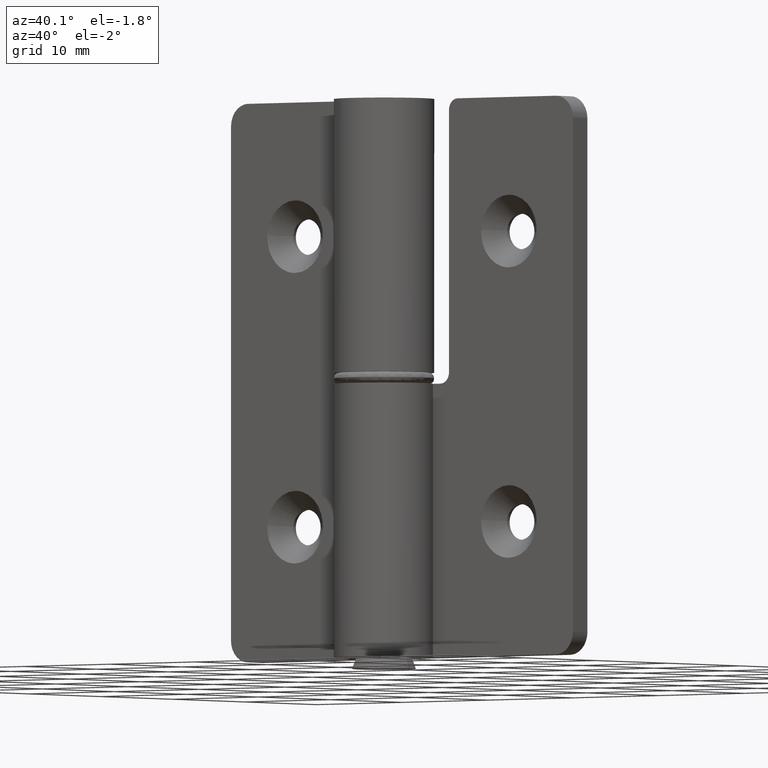
[diagram: clean part render]
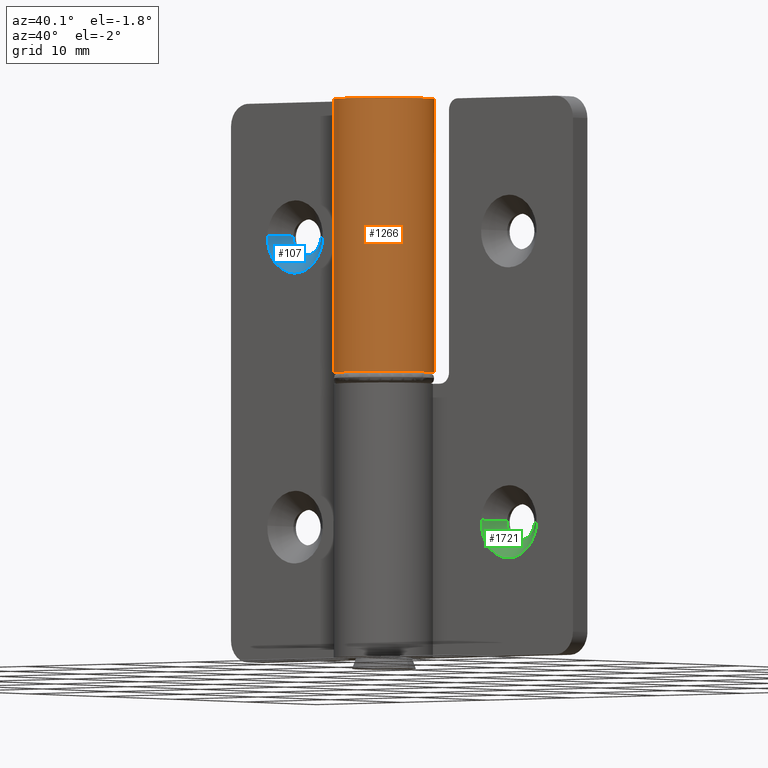
[diagram: same view with three faces highlighted in distinct colors, each labeled with its STEP entity id]
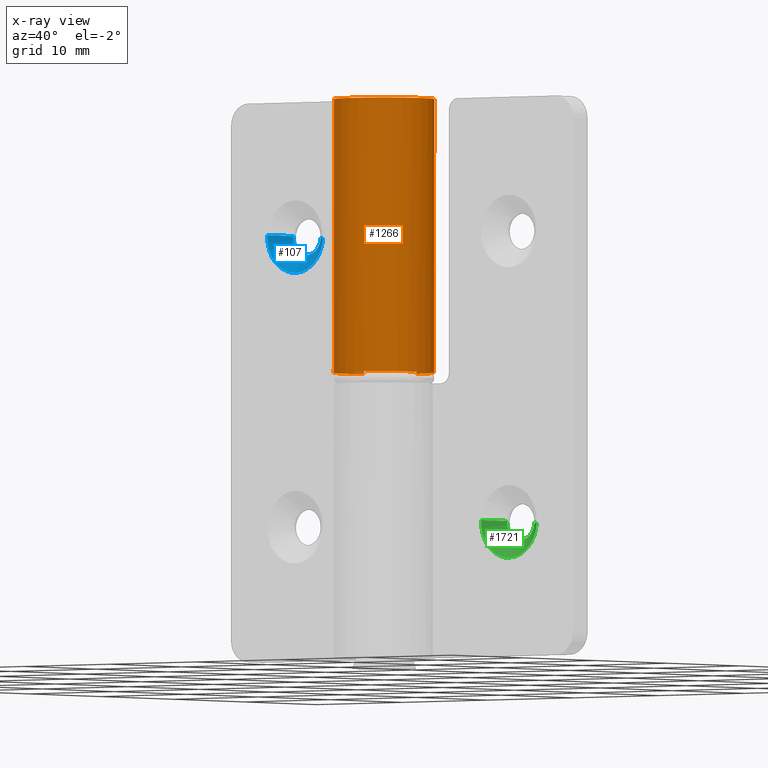
[diagram: x-ray of the same camera — body ghosted, the three highlighted faces saturated]
A machine part, auxiliary view with three faces highlighted in distinct colors.
The next image is the same camera in x-ray (body ghosted, the three faces saturated) — at least one of them is partly hidden behind the body in this view.
Their STEP definitions:

[orange] entity #1266 — the highlighted face is a freeform B-spline surface patch.
#914=CARTESIAN_POINT('',(9.090227E-012,4.500000000000000,25.500000000000000));
#915=VERTEX_POINT('',#914);
#921=CARTESIAN_POINT('',(-4.031128874146639,1.999999999986885,25.500000000000000));
#922=VERTEX_POINT('',#921);
#923=CARTESIAN_POINT('',(-4.031128874146639,1.999999999986885,25.500000000000000));
#924=CARTESIAN_POINT('',(-4.138910620356154,1.782798107865963,25.499999999999950));
#925=CARTESIAN_POINT('',(-4.307956591701969,1.359147254963135,25.500000000000139));
#926=CARTESIAN_POINT('',(-4.466060672405581,0.678384569913920,25.499999999999989));
#927=CARTESIAN_POINT('',(-4.519610460170551,-0.018988323909117,25.499999999999901));
#928=CARTESIAN_POINT('',(-4.465358347118203,-0.655282907257226,25.500000000000082));
#929=CARTESIAN_POINT('',(-4.328533426013395,-1.277753303401902,25.500000000000028));
#930=CARTESIAN_POINT('',(-4.105764026570808,-1.892439581663196,25.499999999999620));
#931=CARTESIAN_POINT('',(-3.753984773515254,-2.514825776695659,25.500000000001130));
#932=CARTESIAN_POINT('',(-3.347763742886635,-3.026463840479621,25.499999999998039));
#933=CARTESIAN_POINT('',(-2.911104865160503,-3.448547346120465,25.500000000001180));
#934=CARTESIAN_POINT('',(-2.398183750681900,-3.828133323235722,25.499999999998732));
#935=CARTESIAN_POINT('',(-1.806491343440998,-4.140338407986412,25.500000000001709));
#936=CARTESIAN_POINT('',(-1.045754788903435,-4.404368134555530,25.499999999997431));
#937=CARTESIAN_POINT('',(-0.245838113346352,-4.522836812513599,25.500000000000700));
#938=CARTESIAN_POINT('',(0.680527302417971,-4.476536234808856,25.500000000000082));
#939=CARTESIAN_POINT('',(1.494790815490179,-4.275608092340961,25.499999999999911));
#940=CARTESIAN_POINT('',(2.252082008411338,-3.920033853887739,25.500000000000000));
#941=CARTESIAN_POINT('',(2.814580962641016,-3.530516321897107,25.500000000000011));
#942=CARTESIAN_POINT('',(3.293561321972439,-3.086892765731282,25.500000000000011));
#943=CARTESIAN_POINT('',(3.737167269956867,-2.546510529960794,25.499999999999989));
#944=CARTESIAN_POINT('',(4.119983564248288,-1.870958289325793,25.500000000000060));
#945=CARTESIAN_POINT('',(4.389021113485643,-1.094859512238254,25.499999999999709));
#946=CARTESIAN_POINT('',(4.522200099860414,-0.253117987993495,25.500000000000949));
#947=CARTESIAN_POINT('',(4.487332059203711,0.614882918885437,25.500000000001119));
#948=CARTESIAN_POINT('',(4.276405911534507,1.487612542338088,25.500000000000028));
#949=CARTESIAN_POINT('',(3.927822952747235,2.249439821118553,25.499999999999890));
#950=CARTESIAN_POINT('',(3.470780646516362,2.895012160629490,25.500000000000028));
#951=CARTESIAN_POINT('',(3.001562533080932,3.371509354503664,25.500000000000071));
#952=CARTESIAN_POINT('',(2.448425272797965,3.797937982881020,25.499999999999581));
#953=CARTESIAN_POINT('',(1.833850378801791,4.133767240521741,25.500000000000188));
#954=CARTESIAN_POINT('',(0.985029688451625,4.422960157832891,25.500000000001751));
#955=CARTESIAN_POINT('',(0.378890565767316,4.500107168212135,25.499999999997112));
#956=CARTESIAN_POINT('',(9.090227E-012,4.500000000000000,25.500000000000000));
#957=B_SPLINE_CURVE_WITH_KNOTS('',3,(#923,#924,#925,#926,#927,#928,#929,#930,#931,#932,#933,#934,#935,#936,#937,#938,#939,#940,#941,#942,#943,#944,#945,#946,#947,#948,#949,#950,#951,#952,#953,#954,#955,#956),.UNSPECIFIED.,.F.,.U.,(4,1,1,1,1,1,1,1,1,1,1,1,1,1,1,1,1,1,1,1,1,1,1,1,1,1,1,1,1,1,1,4),(0.000000185197194,0.727421659227911,1.363946713318665,2.091413374560119,2.818861875617127,3.273522803122738,4.000968073018193,4.773901528733269,5.410399312036933,5.955955916896699,6.592491914206782,7.319930872682400,7.956455562245040,9.002173008620806,9.729633166254009,10.729884335361101,11.502802887088510,12.230218952372271,12.775808807470550,13.457787125797671,14.321633895144560,15.094557706912139,15.912946623686960,16.867709871461610,17.686074600304451,18.595394119166890,19.368296809987019,20.050290427055380,20.595880241202689,21.459727010893310,22.141705328241329,23.278342379552271),.UNSPECIFIED.);
#958=EDGE_CURVE('',#922,#915,#957,.T.);
#1057=CARTESIAN_POINT('',(-4.031128874146615,1.999999999986860,50.0));
#1058=VERTEX_POINT('',#1057);
#1064=CARTESIAN_POINT('',(9.114612E-012,4.500000000000000,50.0));
#1065=VERTEX_POINT('',#1064);
#1066=CARTESIAN_POINT('',(9.114612E-012,4.500000000000000,50.0));
#1067=CARTESIAN_POINT('',(0.272793510468058,4.500026416084811,49.999999999999943));
#1068=CARTESIAN_POINT('',(0.803211475465134,4.451624590594709,50.000000000000057));
#1069=CARTESIAN_POINT('',(1.507320056702505,4.258460334540823,49.999999999999822));
#1070=CARTESIAN_POINT('',(2.256461412436385,3.924619248210873,50.000000000000547));
#1071=CARTESIAN_POINT('',(2.921424171567884,3.463633875064650,49.999999999999559));
#1072=CARTESIAN_POINT('',(3.478010913680070,2.880840617943311,50.000000000000412));
#1073=CARTESIAN_POINT('',(3.837794046686162,2.372597761248092,49.999999999999851));
#1074=CARTESIAN_POINT('',(4.187837264961154,1.716112380432929,49.999999999999083));
#1075=CARTESIAN_POINT('',(4.442251529426352,0.915935706474383,49.999999999999723));
#1076=CARTESIAN_POINT('',(4.527660336802565,-0.024150407826365,50.000000000000483));
#1077=CARTESIAN_POINT('',(4.433752968486250,-0.948127517464367,50.000000000000078));
#1078=CARTESIAN_POINT('',(4.170281395785108,-1.760906916162176,49.999999999999950));
#1079=CARTESIAN_POINT('',(3.725597233816329,-2.574072974227107,50.000000000000149));
#1080=CARTESIAN_POINT('',(3.170139409360018,-3.243927161050396,49.999999999999943));
#1081=CARTESIAN_POINT('',(2.485129501473573,-3.776757996166634,49.999999999999993));
#1082=CARTESIAN_POINT('',(1.803122290434791,-4.144501094150799,50.000000000000043));
#1083=CARTESIAN_POINT('',(1.141532582488197,-4.373214375542873,49.999999999999957));
#1084=CARTESIAN_POINT('',(0.452864348966808,-4.492263240859656,50.000000000000043));
#1085=CARTESIAN_POINT('',(-0.230532716290286,-4.512607979627694,50.000000000000007));
#1086=CARTESIAN_POINT('',(-0.849176702133131,-4.433698847637270,49.999999999999957));
#1087=CARTESIAN_POINT('',(-1.493856261142749,-4.259950861217748,50.000000000000043));
#1088=CARTESIAN_POINT('',(-2.040335899169011,-4.029130921288351,50.0));
#1089=CARTESIAN_POINT('',(-2.650126141110520,-3.658484926538105,50.000000000000050));
#1090=CARTESIAN_POINT('',(-3.186563271831437,-3.208760367284297,49.999999999999957));
#1091=CARTESIAN_POINT('',(-3.755637346993983,-2.535053907513366,50.000000000000071));
#1092=CARTESIAN_POINT('',(-4.135728853807953,-1.838110080324346,49.999999999999957));
#1093=CARTESIAN_POINT('',(-4.396306304557934,-1.044718533186136,50.000000000000007));
#1094=CARTESIAN_POINT('',(-4.520675522963336,-0.278264586863021,50.000000000000227));
#1095=CARTESIAN_POINT('',(-4.491971475178015,0.513321824481070,49.999999999999460));
#1096=CARTESIAN_POINT('',(-4.332786464435726,1.286879942973901,50.000000000000817));
#1097=CARTESIAN_POINT('',(-4.159133022094229,1.742075457494965,50.000000000000732));
#1098=CARTESIAN_POINT('',(-4.031128874146615,1.999999999986860,50.0));
#1099=B_SPLINE_CURVE_WITH_KNOTS('',3,(#1066,#1067,#1068,#1069,#1070,#1071,#1072,#1073,#1074,#1075,#1076,#1077,#1078,#1079,#1080,#1081,#1082,#1083,#1084,#1085,#1086,#1087,#1088,#1089,#1090,#1091,#1092,#1093,#1094,#1095,#1096,#1097,#1098),.UNSPECIFIED.,.F.,.U.,(4,1,1,1,1,1,1,1,1,1,1,1,1,1,1,1,1,1,1,1,1,1,1,1,1,1,1,1,1,1,4),(0.000000185198601,0.818379339119371,1.591284352427532,2.182336765592432,3.273522803123452,4.000968073018775,4.592038171186250,5.137628766775389,6.228767062137749,7.092618699236880,7.956455562245079,9.002173008620789,9.638689983507520,10.729884335360939,11.593726297629241,12.230218952371910,13.048584592349700,13.685108474111150,14.321633895144320,15.094557706912020,15.549217326253070,16.322120016545089,16.867709871461859,17.686074600304771,18.413528587056849,19.504693785488431,20.050290427055621,20.914143018290069,21.823454311568049,22.414521850843599,23.278342379552249),.UNSPECIFIED.);
#1100=EDGE_CURVE('',#1065,#1058,#1099,.T.);
#1224=CARTESIAN_POINT('',(-4.031128874146615,1.999999999986860,50.0));
#1225=CARTESIAN_POINT('',(-4.031128874146639,1.999999999986885,25.500000000000000));
#1226=QUASI_UNIFORM_CURVE('',1,(#1224,#1225),.UNSPECIFIED.,.F.,.U.);
#1227=EDGE_CURVE('',#1058,#922,#1226,.T.);
#1234=CARTESIAN_POINT('',(-3.954677006969679,2.147214421168211,50.612500000000018));
#1235=CARTESIAN_POINT('',(-3.954677006969705,2.147214421168211,24.872187499999999));
#1236=CARTESIAN_POINT('',(-6.559456388433977,-2.650192408152969,50.612500000000026));
#1237=CARTESIAN_POINT('',(-6.559456388434003,-2.650192408152969,24.872187500000003));
#1238=CARTESIAN_POINT('',(-1.353176097760099,-4.291726278366966,50.612500000000018));
#1239=CARTESIAN_POINT('',(-1.353176097760125,-4.291726278366967,24.872187499999999));
#1240=CARTESIAN_POINT('',(3.853104192913776,-5.933260148580964,50.612500000000004));
#1241=CARTESIAN_POINT('',(3.853104192913751,-5.933260148580967,24.872187499999985));
#1242=CARTESIAN_POINT('',(4.471073350553701,-0.509414461955580,50.612500000000011));
#1243=CARTESIAN_POINT('',(4.471073350553676,-0.509414461955579,24.872187499999988));
#1244=CARTESIAN_POINT('',(5.089042508193629,4.914431224669806,50.612500000000004));
#1245=CARTESIAN_POINT('',(5.089042508193604,4.914431224669806,24.872187499999985));
#1246=CARTESIAN_POINT('',(-0.353065930766174,4.486128001799020,50.612500000000018));
#1247=CARTESIAN_POINT('',(-0.353065930766200,4.486128001799019,24.872187499999988));
#1255=(BOUNDED_SURFACE()B_SPLINE_SURFACE(1,2,((#1234,#1236,#1238,#1240,#1242,#1244,#1246),(#1235,#1237,#1239,#1241,#1243,#1245,#1247)),.UNSPECIFIED.,.F.,.F.,.U.)B_SPLINE_SURFACE_WITH_KNOTS((2,2),(3,2,2,3),(0.0,25.740312500000030),(0.0,8.489351137881871,16.978702275763741,25.468053413645610),.UNSPECIFIED.)GEOMETRIC_REPRESENTATION_ITEM()RATIONAL_B_SPLINE_SURFACE(((1.0,0.636078220277764,1.0,0.636078220277764,1.0,0.636078220277764,1.0),(1.0,0.636078220277764,1.0,0.636078220277764,1.0,0.636078220277764,1.0)))REPRESENTATION_ITEM('')SURFACE());
#1256=ORIENTED_EDGE('',*,*,#958,.T.);
#1257=CARTESIAN_POINT('',(9.114612E-012,4.500000000000000,50.0));
#1258=CARTESIAN_POINT('',(9.090227E-012,4.500000000000000,25.500000000000000));
#1259=QUASI_UNIFORM_CURVE('',1,(#1257,#1258),.UNSPECIFIED.,.F.,.U.);
#1260=EDGE_CURVE('',#1065,#915,#1259,.T.);
#1261=ORIENTED_EDGE('',*,*,#1260,.F.);
#1262=ORIENTED_EDGE('',*,*,#1100,.T.);
#1263=ORIENTED_EDGE('',*,*,#1227,.T.);
#1264=EDGE_LOOP('',(#1256,#1261,#1262,#1263));
#1265=FACE_OUTER_BOUND('',#1264,.T.);
#1266=ADVANCED_FACE('',(#1265),#1255,.T.);

[blue] entity #107 — the highlighted face is a freeform B-spline surface patch.
#5=CARTESIAN_POINT('',(-14.053682824528071,4.191249999951988,38.130471706147645));
#6=CARTESIAN_POINT('',(-14.054757620626081,4.191249999951989,38.112898945279007));
#7=CARTESIAN_POINT('',(-14.151002028022349,4.191249999951988,36.539316793967174));
#8=CARTESIAN_POINT('',(-12.595159410990041,4.191249999951989,36.444157382967703));
#9=CARTESIAN_POINT('',(-11.039316793957738,4.191249999951988,36.348997971968217));
#10=CARTESIAN_POINT('',(-10.943484422162717,4.191249999951990,37.915843400748649));
#11=CARTESIAN_POINT('',(-10.942815392446244,4.191249999951987,37.926781939922130));
#12=CARTESIAN_POINT('',(-15.781578721151051,2.457718750001200,38.275573088564627));
#13=CARTESIAN_POINT('',(-15.783848829276790,2.457718750001200,38.238457148793735));
#14=CARTESIAN_POINT('',(-15.987129443797528,2.457718750001199,34.914848480287070));
#15=CARTESIAN_POINT('',(-12.700988962037570,2.457718750001200,34.713859518240064));
#16=CARTESIAN_POINT('',(-9.414848480277628,2.457718750001199,34.512870556193050));
#17=CARTESIAN_POINT('',(-9.212438138144581,2.457718750001200,37.822250396936298));
#18=CARTESIAN_POINT('',(-9.211025061005071,2.457718750001198,37.845354003943704));
#26=(BOUNDED_SURFACE()B_SPLINE_SURFACE(2,1,((#5,#12),(#6,#13),(#7,#14),(#8,#15),(#9,#16),(#10,#17),(#11,#18)),.UNSPECIFIED.,.F.,.F.,.U.)B_SPLINE_SURFACE_WITH_KNOTS((3,1,2,1,3),(2,2),(0.0,0.088374859031100,5.543205038523229,10.998035218015360,11.052750456048020),(0.0,2.451899107896118),.UNSPECIFIED.)GEOMETRIC_REPRESENTATION_ITEM()RATIONAL_B_SPLINE_SURFACE(((1.009490450141278,1.009490450141278),(1.004745225070639,1.004745225070639),(0.707106781186548,0.707106781186548),(1.0,1.0),(0.707106781186548,0.707106781186548),(1.002937895710444,1.002937895710444),(1.005875791420889,1.005875791420889)))REPRESENTATION_ITEM('')SURFACE());
#27=CARTESIAN_POINT('',(-14.096101554163420,4.149940039649472,38.111609768797997));
#28=VERTEX_POINT('',#27);
#29=CARTESIAN_POINT('',(-15.743938256599799,2.499999768414289,38.198408901640413));
#30=VERTEX_POINT('',#29);
#31=CARTESIAN_POINT('',(-14.096101554163420,4.149940039649472,38.111609768797997));
#32=CARTESIAN_POINT('',(-15.743938256599799,2.499999768414289,38.198408901640413));
#33=QUASI_UNIFORM_CURVE('',1,(#31,#32),.UNSPECIFIED.,.F.,.U.);
#34=EDGE_CURVE('',#28,#30,#33,.T.);
#35=ORIENTED_EDGE('',*,*,#34,.T.);
#36=CARTESIAN_POINT('',(-12.499999999990560,2.500000000000000,34.750000000055813));
#37=VERTEX_POINT('',#36);
#38=CARTESIAN_POINT('',(-15.743938256599803,2.499999768414289,38.198408901640406));
#39=CARTESIAN_POINT('',(-15.750000227766474,2.499999771742329,38.099297063252180));
#40=CARTESIAN_POINT('',(-15.750000224235270,2.499999775280140,38.000000013718903));
#41=CARTESIAN_POINT('',(-15.750000108658492,2.499999891072997,34.750000006705676));
#42=CARTESIAN_POINT('',(-12.499999999990560,2.500000000000000,34.750000000055813));
#50=(BOUNDED_CURVE()B_SPLINE_CURVE(2,(#38,#39,#40,#41,#42),.UNSPECIFIED.,.F.,.U.)B_SPLINE_CURVE_WITH_KNOTS((3,2,3),(0.239332901922979,0.250000000000000,0.500000000000000),.UNSPECIFIED.)CURVE()GEOMETRIC_REPRESENTATION_ITEM()RATIONAL_B_SPLINE_CURVE((0.976071912398160,0.987502717235291,1.0,0.707106781186547,1.0))REPRESENTATION_ITEM(''));
#51=EDGE_CURVE('',#30,#37,#50,.T.);
#52=ORIENTED_EDGE('',*,*,#51,.T.);
#53=CARTESIAN_POINT('',(-9.256061743381320,2.499999768414288,37.801591098359587));
#54=VERTEX_POINT('',#53);
#55=CARTESIAN_POINT('',(-12.499999999990560,2.500000000000000,34.750000000055813));
#56=CARTESIAN_POINT('',(-9.442706237790413,2.499999884207144,34.749999992986794));
#57=CARTESIAN_POINT('',(-9.256061743381320,2.499999768414288,37.801591098359594));
#65=(BOUNDED_CURVE()B_SPLINE_CURVE(2,(#55,#56,#57),.UNSPECIFIED.,.F.,.U.)B_SPLINE_CURVE_WITH_KNOTS((3,3),(0.500000000000000,0.739332901922979),.UNSPECIFIED.)CURVE()GEOMETRIC_REPRESENTATION_ITEM()RATIONAL_B_SPLINE_CURVE((1.0,0.719604063951257,0.976071912398160))REPRESENTATION_ITEM(''));
#66=EDGE_CURVE('',#37,#54,#65,.T.);
#67=ORIENTED_EDGE('',*,*,#66,.T.);
#68=CARTESIAN_POINT('',(-10.903898445817701,4.149940039649472,37.888390231202003));
#69=VERTEX_POINT('',#68);
#70=CARTESIAN_POINT('',(-10.903898445817701,4.149940039649472,37.888390231202003));
#71=CARTESIAN_POINT('',(-9.256061743381320,2.499999768414288,37.801591098359587));
#72=QUASI_UNIFORM_CURVE('',1,(#70,#71),.UNSPECIFIED.,.F.,.U.);
#73=EDGE_CURVE('',#69,#54,#72,.T.);
#74=ORIENTED_EDGE('',*,*,#73,.F.);
#75=CARTESIAN_POINT('',(-12.499999999990560,4.149999999953160,36.400000000008973));
#76=VERTEX_POINT('',#75);
#77=CARTESIAN_POINT('',(-12.499999999990560,4.149999999953160,36.400000000008973));
#78=CARTESIAN_POINT('',(-11.020458303418557,4.149970019801316,36.406962392291383));
#79=CARTESIAN_POINT('',(-10.903898445817706,4.149940039649472,37.888390231202003));
#87=(BOUNDED_CURVE()B_SPLINE_CURVE(2,(#77,#78,#79),.UNSPECIFIED.,.F.,.U.)B_SPLINE_CURVE_WITH_KNOTS((3,3),(0.500000000000000,0.736331300611383),.UNSPECIFIED.)CURVE()GEOMETRIC_REPRESENTATION_ITEM()RATIONAL_B_SPLINE_CURVE((1.0,0.723120658630250,0.969723356127189))REPRESENTATION_ITEM(''));
#88=EDGE_CURVE('',#76,#69,#87,.T.);
#89=ORIENTED_EDGE('',*,*,#88,.F.);
#90=CARTESIAN_POINT('',(-14.096101554163418,4.149940039649472,38.111609768797997));
#91=CARTESIAN_POINT('',(-14.099999052930045,4.149941015923209,38.055872903070416));
#92=CARTESIAN_POINT('',(-14.099999069739541,4.149942062848274,37.999999934951447));
#93=CARTESIAN_POINT('',(-14.099999551102878,4.149972043000118,36.399999968620449));
#94=CARTESIAN_POINT('',(-12.499999999990560,4.149999999953160,36.400000000008973));
#102=(BOUNDED_CURVE()B_SPLINE_CURVE(2,(#90,#91,#92,#93,#94),.UNSPECIFIED.,.F.,.U.)B_SPLINE_CURVE_WITH_KNOTS((3,2,3),(0.237829739228976,0.250000000000000,0.500000000000000),.UNSPECIFIED.)CURVE()GEOMETRIC_REPRESENTATION_ITEM()RATIONAL_B_SPLINE_CURVE((0.972871527640379,0.985741652595902,1.0,0.707106781186548,1.0))REPRESENTATION_ITEM(''));
#103=EDGE_CURVE('',#28,#76,#102,.T.);
#104=ORIENTED_EDGE('',*,*,#103,.F.);
#105=EDGE_LOOP('',(#35,#52,#67,#74,#89,#104));
#106=FACE_OUTER_BOUND('',#105,.T.);
#107=ADVANCED_FACE('',(#106),#26,.F.);

[green] entity #1721 — the highlighted face is a freeform B-spline surface patch.
#1619=CARTESIAN_POINT('',(10.946317175472691,4.191249999949082,12.130471706147562));
#1620=CARTESIAN_POINT('',(10.945242379374681,4.191249999949079,12.112898945278914));
#1621=CARTESIAN_POINT('',(10.848997971978493,4.191249999949080,10.539316793968275));
#1622=CARTESIAN_POINT('',(12.404840589009630,4.191249999949081,10.444157382968861));
#1623=CARTESIAN_POINT('',(13.960683206040764,4.191249999949080,10.348997971969453));
#1624=CARTESIAN_POINT('',(14.056515577835716,4.191249999949081,11.915843400748708));
#1625=CARTESIAN_POINT('',(14.057184607552175,4.191249999949079,11.926781939922204));
#1626=CARTESIAN_POINT('',(9.218421278800671,2.457718749949075,12.275573088568665));
#1627=CARTESIAN_POINT('',(9.216151170674898,2.457718749949074,12.238457148797226));
#1628=CARTESIAN_POINT('',(9.012870556151203,2.457718749949074,8.914848480242055));
#1629=CARTESIAN_POINT('',(12.299011037959090,2.457718749949074,8.713859518192109));
#1630=CARTESIAN_POINT('',(15.585151519766981,2.457718749949074,8.512870556142163));
#1631=CARTESIAN_POINT('',(15.787561861902985,2.457718749949074,11.822250396933685));
#1632=CARTESIAN_POINT('',(15.788974939042509,2.457718749949073,11.845354003941459));
#1640=(BOUNDED_SURFACE()B_SPLINE_SURFACE(2,1,((#1619,#1626),(#1620,#1627),(#1621,#1628),(#1622,#1629),(#1623,#1630),(#1624,#1631),(#1625,#1632)),.UNSPECIFIED.,.F.,.F.,.U.)B_SPLINE_SURFACE_WITH_KNOTS((3,1,2,1,3),(2,2),(0.0,0.088374859032402,5.543205038604132,10.998035218175859,11.052750456209321),(0.0,2.451899107965724),.UNSPECIFIED.)GEOMETRIC_REPRESENTATION_ITEM()RATIONAL_B_SPLINE_SURFACE(((1.009490450141279,1.009490450141279),(1.004745225070640,1.004745225070640),(0.707106781186548,0.707106781186548),(1.0,1.0),(0.707106781186548,0.707106781186548),(1.002937895710444,1.002937895710444),(1.005875791420888,1.005875791420888)))REPRESENTATION_ITEM('')SURFACE());
#1641=CARTESIAN_POINT('',(10.903898445836180,4.149940039645394,12.111609768797990));
#1642=VERTEX_POINT('',#1641);
#1643=CARTESIAN_POINT('',(9.256061743353044,2.499999768363360,12.198408901643271));
#1644=VERTEX_POINT('',#1643);
#1645=CARTESIAN_POINT('',(10.903898445836180,4.149940039645394,12.111609768797990));
#1646=CARTESIAN_POINT('',(9.256061743353044,2.499999768363360,12.198408901643271));
#1647=QUASI_UNIFORM_CURVE('',1,(#1645,#1646),.UNSPECIFIED.,.F.,.U.);
#1648=EDGE_CURVE('',#1642,#1644,#1647,.T.);
#1649=ORIENTED_EDGE('',*,*,#1648,.T.);
#1650=CARTESIAN_POINT('',(12.500000000009040,2.499999999949075,8.750000000008965));
#1651=VERTEX_POINT('',#1650);
#1652=CARTESIAN_POINT('',(9.256061743353044,2.499999768363360,12.198408901643266));
#1653=CARTESIAN_POINT('',(9.249999772186277,2.499999771691400,12.099297063253603));
#1654=CARTESIAN_POINT('',(9.249999775717486,2.499999775229212,12.000000013718889));
#1655=CARTESIAN_POINT('',(9.249999891294264,2.499999891022071,8.750000006658835));
#1656=CARTESIAN_POINT('',(12.500000000009040,2.499999999949075,8.750000000008965));
#1664=(BOUNDED_CURVE()B_SPLINE_CURVE(2,(#1652,#1653,#1654,#1655,#1656),.UNSPECIFIED.,.F.,.U.)B_SPLINE_CURVE_WITH_KNOTS((3,2,3),(0.239332901922979,0.250000000000000,0.500000000000000),.UNSPECIFIED.)CURVE()GEOMETRIC_REPRESENTATION_ITEM()RATIONAL_B_SPLINE_CURVE((0.976071912398160,0.987502717235290,1.0,0.707106781186548,1.0))REPRESENTATION_ITEM(''));
#1665=EDGE_CURVE('',#1644,#1651,#1664,.T.);
#1666=ORIENTED_EDGE('',*,*,#1665,.T.);
#1667=CARTESIAN_POINT('',(15.743938256665039,2.499999768363360,11.801591098356729));
#1668=VERTEX_POINT('',#1667);
#1669=CARTESIAN_POINT('',(12.500000000009040,2.499999999949075,8.750000000008965));
#1670=CARTESIAN_POINT('',(15.557293762253261,2.499999884156218,8.749999992939946));
#1671=CARTESIAN_POINT('',(15.743938256665041,2.499999768363360,11.801591098356734));
#1679=(BOUNDED_CURVE()B_SPLINE_CURVE(2,(#1669,#1670,#1671),.UNSPECIFIED.,.F.,.U.)B_SPLINE_CURVE_WITH_KNOTS((3,3),(0.500000000000000,0.739332901922979),.UNSPECIFIED.)CURVE()GEOMETRIC_REPRESENTATION_ITEM()RATIONAL_B_SPLINE_CURVE((1.0,0.719604063951257,0.976071912398160))REPRESENTATION_ITEM(''));
#1680=EDGE_CURVE('',#1651,#1668,#1679,.T.);
#1681=ORIENTED_EDGE('',*,*,#1680,.T.);
#1682=CARTESIAN_POINT('',(14.096101554181899,4.149940039645393,11.888390231201999));
#1683=VERTEX_POINT('',#1682);
#1684=CARTESIAN_POINT('',(14.096101554181899,4.149940039645393,11.888390231201999));
#1685=CARTESIAN_POINT('',(15.743938256665039,2.499999768363360,11.801591098356729));
#1686=QUASI_UNIFORM_CURVE('',1,(#1684,#1685),.UNSPECIFIED.,.F.,.U.);
#1687=EDGE_CURVE('',#1683,#1668,#1686,.T.);
#1688=ORIENTED_EDGE('',*,*,#1687,.F.);
#1689=CARTESIAN_POINT('',(12.500000000009040,4.149999999949080,10.400000000008960));
#1690=VERTEX_POINT('',#1689);
#1691=CARTESIAN_POINT('',(12.500000000009040,4.149999999949080,10.400000000008960));
#1692=CARTESIAN_POINT('',(13.979541696581041,4.149970019797235,10.406962392291376));
#1693=CARTESIAN_POINT('',(14.096101554181903,4.149940039645393,11.888390231202004));
#1701=(BOUNDED_CURVE()B_SPLINE_CURVE(2,(#1691,#1692,#1693),.UNSPECIFIED.,.F.,.U.)B_SPLINE_CURVE_WITH_KNOTS((3,3),(0.500000000000000,0.736331300611382),.UNSPECIFIED.)CURVE()GEOMETRIC_REPRESENTATION_ITEM()RATIONAL_B_SPLINE_CURVE((1.0,0.723120658630250,0.969723356127188))REPRESENTATION_ITEM(''));
#1702=EDGE_CURVE('',#1690,#1683,#1701,.T.);
#1703=ORIENTED_EDGE('',*,*,#1702,.F.);
#1704=CARTESIAN_POINT('',(10.903898445836182,4.149940039645394,12.111609768797990));
#1705=CARTESIAN_POINT('',(10.900000947069563,4.149941015919130,12.055872903070407));
#1706=CARTESIAN_POINT('',(10.900000930260060,4.149942062844195,11.999999934951450));
#1707=CARTESIAN_POINT('',(10.900000448896726,4.149972042996038,10.399999968620453));
#1708=CARTESIAN_POINT('',(12.500000000009040,4.149999999949080,10.400000000008960));
#1716=(BOUNDED_CURVE()B_SPLINE_CURVE(2,(#1704,#1705,#1706,#1707,#1708),.UNSPECIFIED.,.F.,.U.)B_SPLINE_CURVE_WITH_KNOTS((3,2,3),(0.237829739228976,0.250000000000000,0.500000000000000),.UNSPECIFIED.)CURVE()GEOMETRIC_REPRESENTATION_ITEM()RATIONAL_B_SPLINE_CURVE((0.972871527640380,0.985741652595903,1.0,0.707106781186548,1.0))REPRESENTATION_ITEM(''));
#1717=EDGE_CURVE('',#1642,#1690,#1716,.T.);
#1718=ORIENTED_EDGE('',*,*,#1717,.F.);
#1719=EDGE_LOOP('',(#1649,#1666,#1681,#1688,#1703,#1718));
#1720=FACE_OUTER_BOUND('',#1719,.T.);
#1721=ADVANCED_FACE('',(#1720),#1640,.F.);